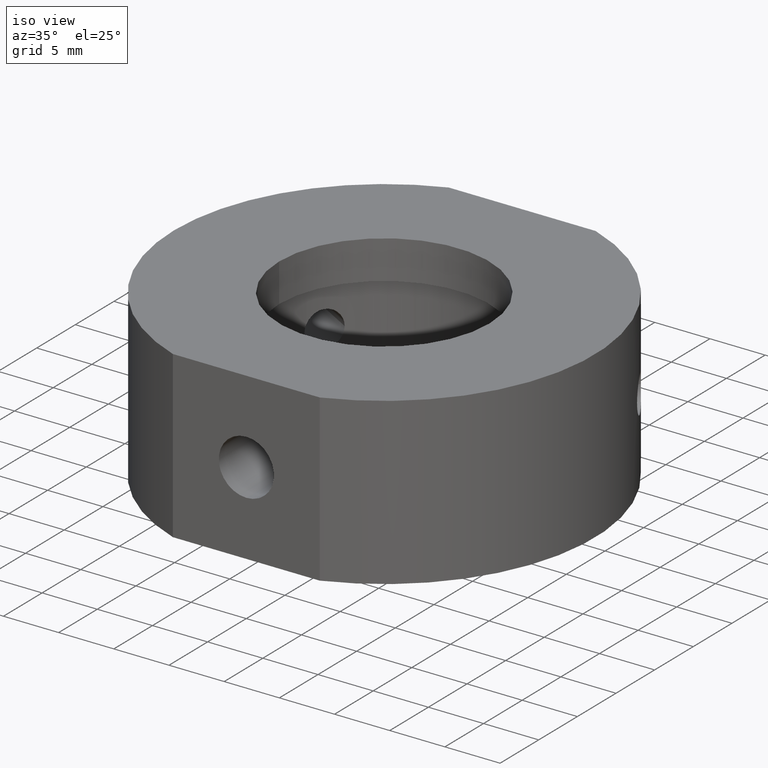
[diagram: clean part render]
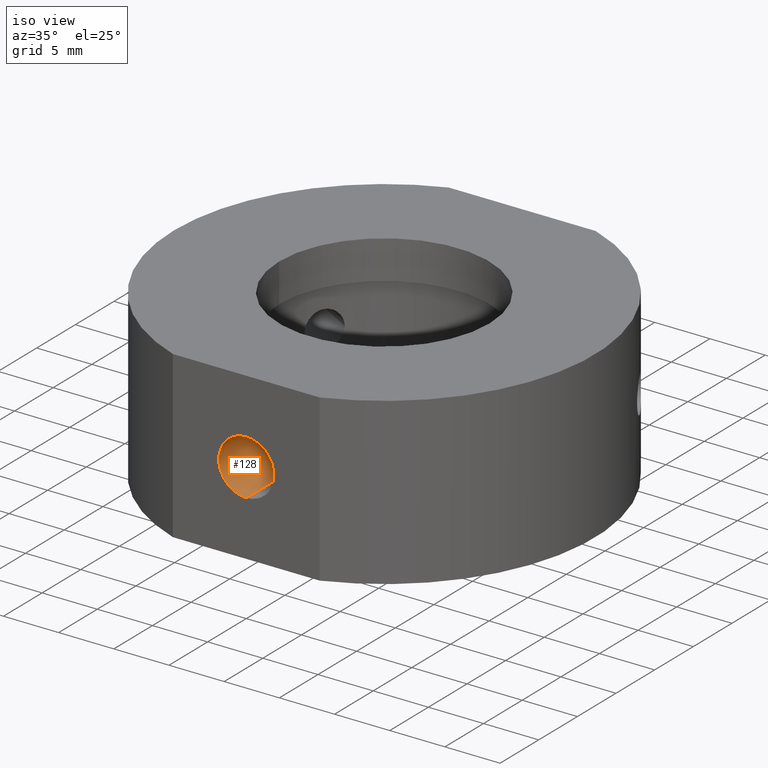
[diagram: same view with one face highlighted and labeled with its STEP entity id]
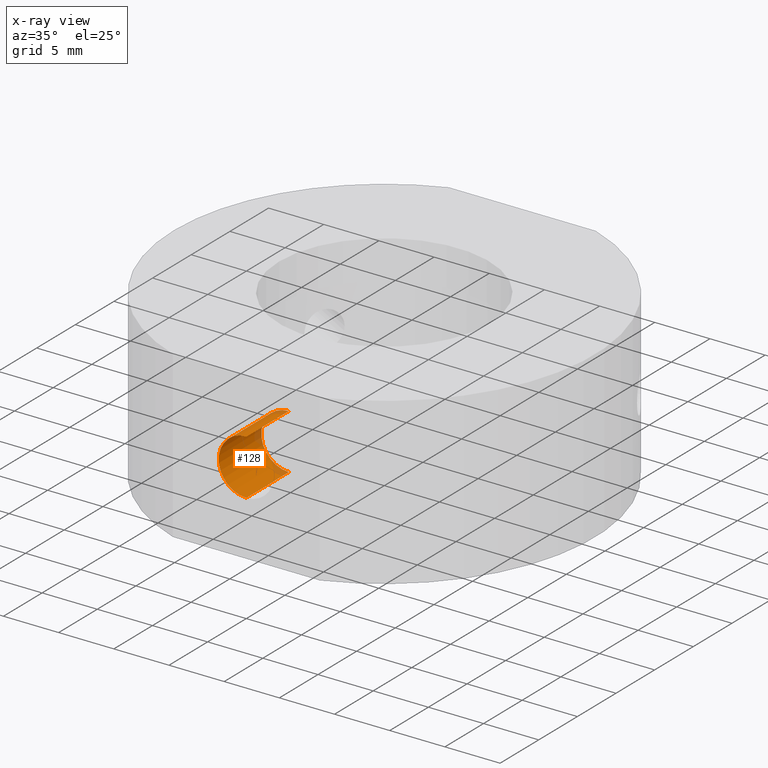
[diagram: x-ray of the same camera — body ghosted, the highlighted face saturated]
A machine part, iso view. The second image highlights one B-rep face of the part: STEP entity #128.
The next image is the same camera in x-ray: the body ghosted, the highlighted face saturated — about 9% of this face is hidden behind the body in this view.
In plain terms, the highlighted cylindrical surface (edge-blend (fillet) strip) has radius 2.5 mm, axis along (-0, -1, -0).
Its self-contained STEP definition (entity closure, byte-faithful):
#31 = CARTESIAN_POINT ( 'NONE',  ( 5.204170427930421300E-015, -12.35000000000000100, -2.499999999999997800 ) ) ;
#122 = CARTESIAN_POINT ( 'NONE',  ( 5.204170427930421300E-015, -17.85000000000000100, -2.499999999999998700 ) ) ;
#128 = ADVANCED_FACE ( 'NONE', ( #372 ), #512, .F. ) ;
#136 = ORIENTED_EDGE ( 'NONE', *, *, #397, .F. ) ;
#143 = ORIENTED_EDGE ( 'NONE', *, *, #465, .T. ) ;
#254 = CARTESIAN_POINT ( 'NONE',  ( 5.204170427930421300E-015, -17.85000000000000100, 0.0000000000000000000 ) ) ;
#316 = DIRECTION ( 'NONE',  ( -0.0000000000000000000, -1.000000000000000000, -0.0000000000000000000 ) ) ;
#372 = FACE_OUTER_BOUND ( 'NONE', #635, .T. ) ;
#376 = DIRECTION ( 'NONE',  ( -0.0000000000000000000, -1.000000000000000000, -0.0000000000000000000 ) ) ;
#381 = VERTEX_POINT ( 'NONE', #1062 ) ;
#397 = EDGE_CURVE ( 'NONE', #995, #935, #428, .T. ) ;
#428 = CIRCLE ( 'NONE', #807, 2.499999999999997800 ) ;
#430 = DIRECTION ( 'NONE',  ( 0.0000000000000000000, 0.0000000000000000000, -1.000000000000000000 ) ) ;
#465 = EDGE_CURVE ( 'NONE', #995, #659, #755, .T. ) ;
#497 = CARTESIAN_POINT ( 'NONE',  ( 5.204170427930421300E-015, -12.35000000000000100, 0.0000000000000000000 ) ) ;
#502 = VECTOR ( 'NONE', #556, 1000.000000000000000 ) ;
#512 = CYLINDRICAL_SURFACE ( 'NONE', #694, 2.499999999999998700 ) ;
#556 = DIRECTION ( 'NONE',  ( -0.0000000000000000000, -1.000000000000000000, -0.0000000000000000000 ) ) ;
#635 = EDGE_LOOP ( 'NONE', ( #136, #143, #773, #842 ) ) ;
#659 = VERTEX_POINT ( 'NONE', #685 ) ;
#685 = CARTESIAN_POINT ( 'NONE',  ( 5.510332127717259900E-015, -17.85000000000000100, 2.499999999999999100 ) ) ;
#688 = DIRECTION ( 'NONE',  ( 0.0000000000000000000, 0.0000000000000000000, -1.000000000000000000 ) ) ;
#694 = AXIS2_PLACEMENT_3D ( 'NONE', #1121, #316, #430 ) ;
#706 = CIRCLE ( 'NONE', #790, 2.499999999999999100 ) ;
#724 = EDGE_CURVE ( 'NONE', #659, #381, #706, .T. ) ;
#755 = LINE ( 'NONE', #819, #915 ) ;
#773 = ORIENTED_EDGE ( 'NONE', *, *, #724, .T. ) ;
#783 = EDGE_CURVE ( 'NONE', #935, #381, #859, .T. ) ;
#790 = AXIS2_PLACEMENT_3D ( 'NONE', #254, #1030, #688 ) ;
#807 = AXIS2_PLACEMENT_3D ( 'NONE', #497, #1027, #1034 ) ;
#819 = CARTESIAN_POINT ( 'NONE',  ( 5.510332127717259900E-015, -17.85000000000000100, 2.499999999999998700 ) ) ;
#842 = ORIENTED_EDGE ( 'NONE', *, *, #783, .F. ) ;
#859 = LINE ( 'NONE', #122, #502 ) ;
#915 = VECTOR ( 'NONE', #376, 1000.000000000000000 ) ;
#935 = VERTEX_POINT ( 'NONE', #31 ) ;
#978 = CARTESIAN_POINT ( 'NONE',  ( 5.510332127717259900E-015, -12.35000000000000100, 2.499999999999997800 ) ) ;
#995 = VERTEX_POINT ( 'NONE', #978 ) ;
#1027 = DIRECTION ( 'NONE',  ( -0.0000000000000000000, -1.000000000000000000, -0.0000000000000000000 ) ) ;
#1030 = DIRECTION ( 'NONE',  ( -0.0000000000000000000, -1.000000000000000000, -0.0000000000000000000 ) ) ;
#1034 = DIRECTION ( 'NONE',  ( 0.0000000000000000000, 0.0000000000000000000, -1.000000000000000000 ) ) ;
#1062 = CARTESIAN_POINT ( 'NONE',  ( 5.204170427930421300E-015, -17.85000000000000100, -2.499999999999999100 ) ) ;
#1121 = CARTESIAN_POINT ( 'NONE',  ( 5.204170427930421300E-015, -17.85000000000000100, 0.0000000000000000000 ) ) ;